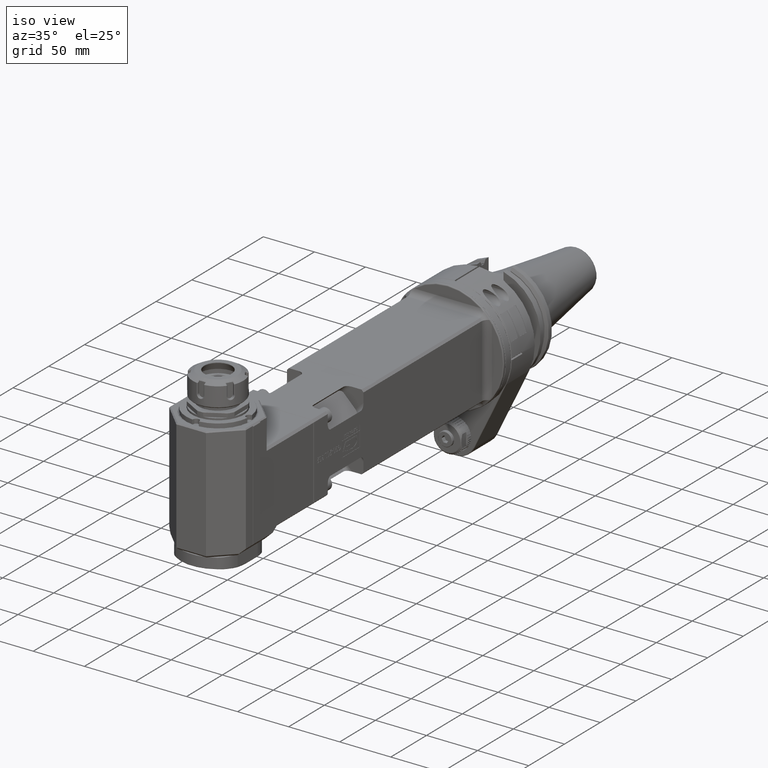
[diagram: clean part render]
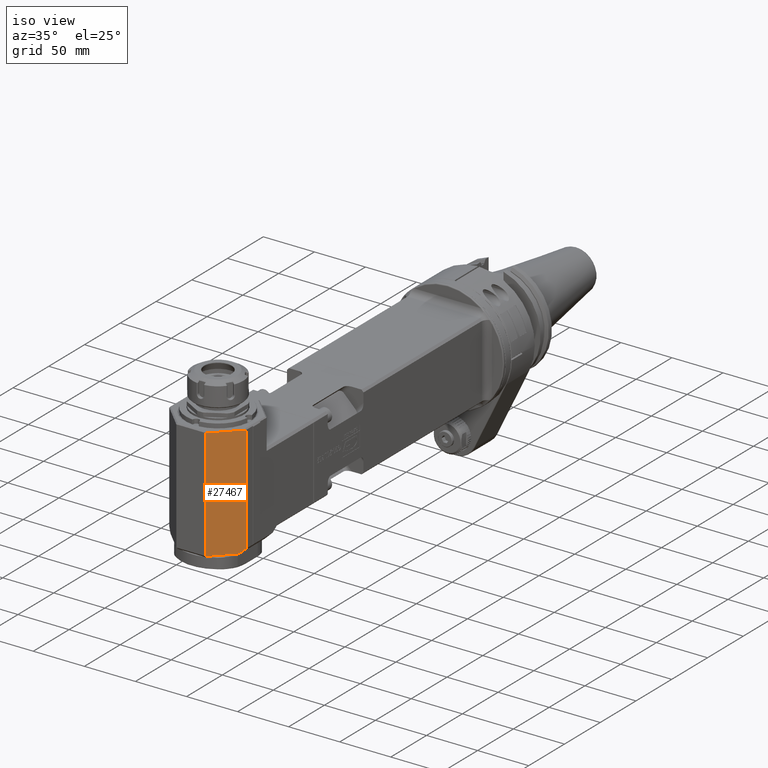
[diagram: same view with one face highlighted and labeled with its STEP entity id]
A machine part, iso view. The second image highlights one B-rep face of the part: STEP entity #27467.
In plain terms, the highlighted planar face has unit normal (0.7071, -0.7071, -0).
Its self-contained STEP definition (entity closure, byte-faithful):
#3698=FACE_OUTER_BOUND('',#5397,.T.);
#5397=EDGE_LOOP('',(#20969,#20970,#20971,#20972,#20973));
#7346=LINE('',#44590,#9543);
#7405=LINE('',#44714,#9602);
#7407=LINE('',#44718,#9604);
#7408=LINE('',#44719,#9605);
#7409=LINE('',#44720,#9606);
#9543=VECTOR('',#34408,6.92820323027569);
#9602=VECTOR('',#34521,32.5269119345778);
#9604=VECTOR('',#34525,109.);
#9605=VECTOR('',#34526,26.8700576850882);
#9606=VECTOR('',#34527,105.);
#11971=VERTEX_POINT('',#44571);
#11975=VERTEX_POINT('',#44587);
#11976=VERTEX_POINT('',#44589);
#12014=VERTEX_POINT('',#44713);
#12015=VERTEX_POINT('',#44717);
#15226=EDGE_CURVE('',#11976,#11975,#7346,.T.);
#15288=EDGE_CURVE('',#12014,#11971,#7405,.T.);
#15290=EDGE_CURVE('',#12014,#12015,#7407,.T.);
#15291=EDGE_CURVE('',#11976,#12015,#7408,.T.);
#15292=EDGE_CURVE('',#11971,#11975,#7409,.T.);
#20969=ORIENTED_EDGE('',*,*,#15288,.F.);
#20970=ORIENTED_EDGE('',*,*,#15290,.T.);
#20971=ORIENTED_EDGE('',*,*,#15291,.F.);
#20972=ORIENTED_EDGE('',*,*,#15226,.T.);
#20973=ORIENTED_EDGE('',*,*,#15292,.F.);
#26445=PLANE('',#29761);
#27467=ADVANCED_FACE('',(#3698),#26445,.T.);
#29761=AXIS2_PLACEMENT_3D('',#44716,#34523,#34524);
#34408=DIRECTION('',(0.577350269189626,0.577350269189626,0.577350269189626));
#34521=DIRECTION('',(0.707106781186548,0.707106781186548,0.));
#34523=DIRECTION('center_axis',(0.707106781186498,-0.707106781186598,0.));
#34524=DIRECTION('ref_axis',(-0.707106781186598,-0.707106781186498,0.));
#34525=DIRECTION('',(0.,0.,-1.));
#34526=DIRECTION('',(-0.707106781186547,-0.707106781186547,0.));
#34527=DIRECTION('',(0.,0.,-1.));
#44571=CARTESIAN_POINT('',(37.5,-346.5,65.));
#44587=CARTESIAN_POINT('',(37.5,-346.5,-40.));
#44589=CARTESIAN_POINT('',(33.5,-350.5,-44.));
#44590=CARTESIAN_POINT('',(33.5,-350.5,-44.));
#44713=CARTESIAN_POINT('',(14.5,-369.5,65.));
#44714=CARTESIAN_POINT('',(14.5,-369.5,65.));
#44716=CARTESIAN_POINT('Origin',(26.,-358.,10.));
#44717=CARTESIAN_POINT('',(14.5,-369.5,-44.));
#44718=CARTESIAN_POINT('',(14.5,-369.5,65.));
#44719=CARTESIAN_POINT('',(33.5,-350.5,-44.));
#44720=CARTESIAN_POINT('',(37.5,-346.5,65.));